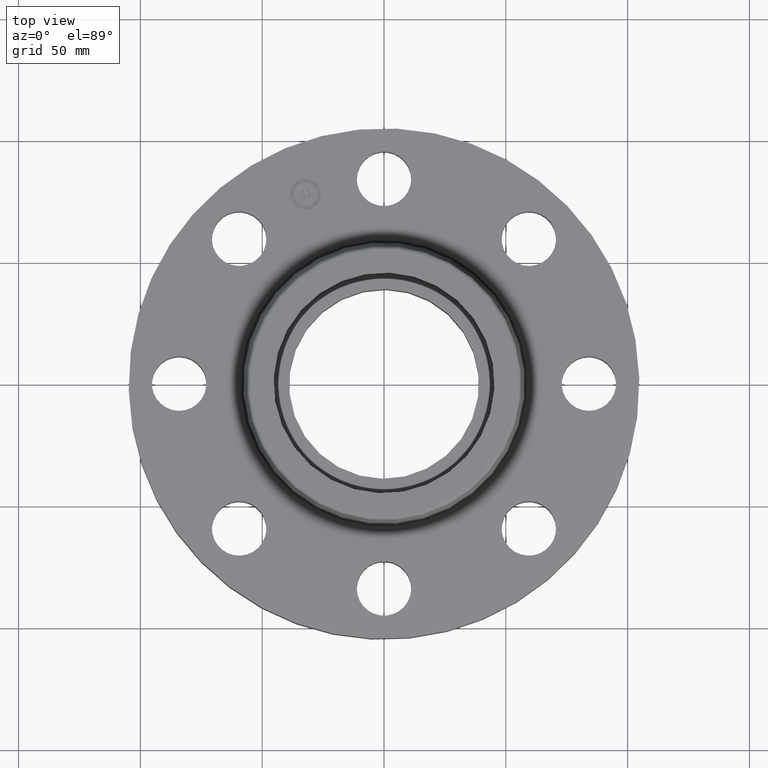
[diagram: clean part render]
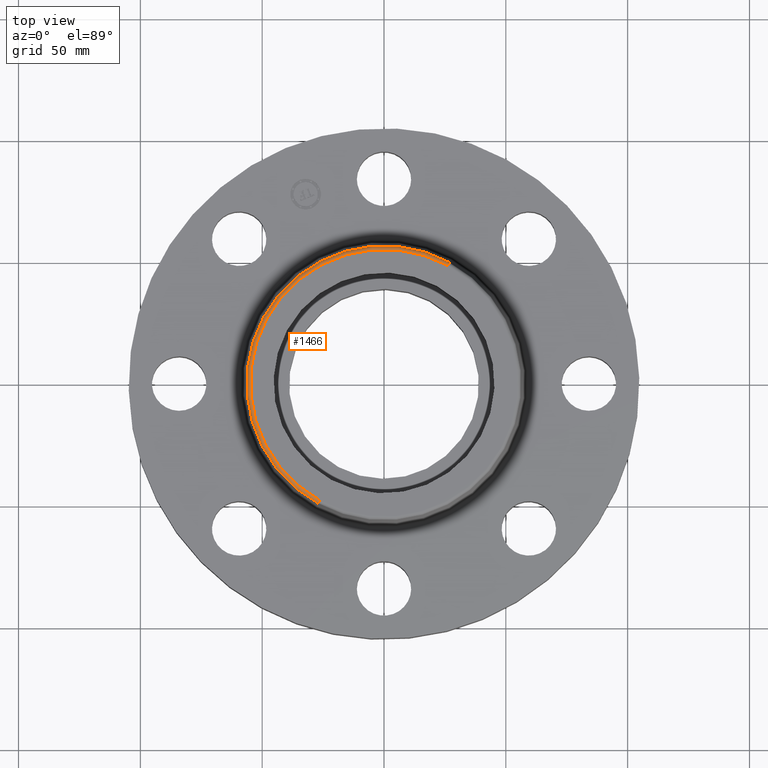
[diagram: same view with one face highlighted and labeled with its STEP entity id]
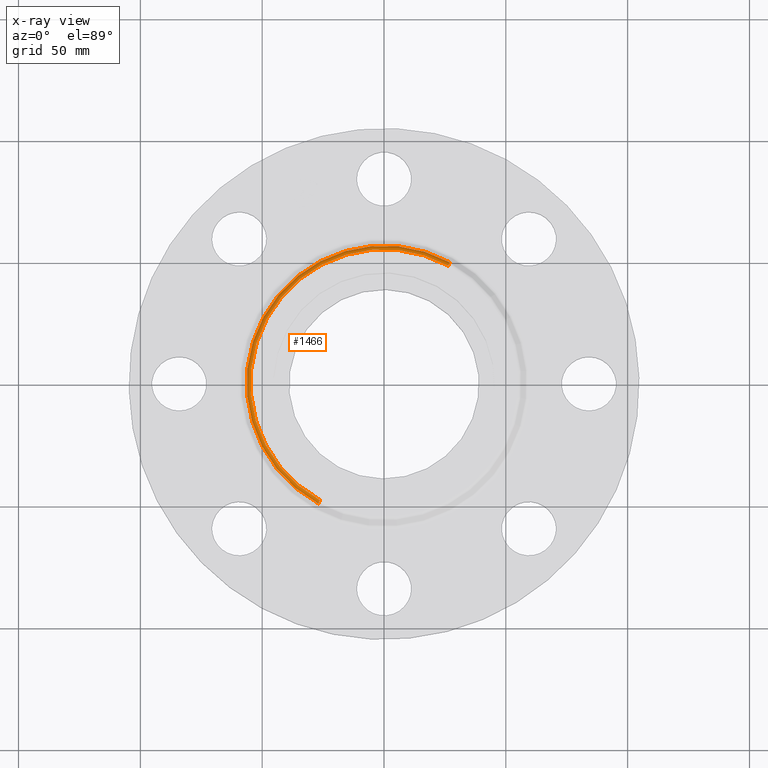
[diagram: x-ray of the same camera — body ghosted, the highlighted face saturated]
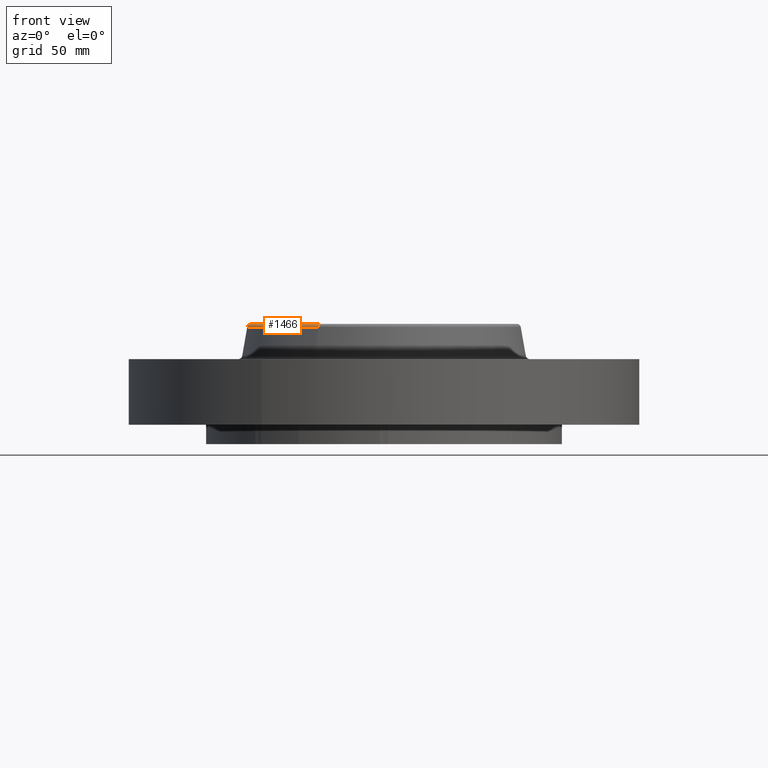
[diagram: same view with one face highlighted and labeled with its STEP entity id]
A machine part, top view. The second image highlights one B-rep face of the part: STEP entity #1466.
The next image is the same camera in x-ray: the body ghosted, the highlighted face saturated — about 0% of this face is hidden behind the body in this view.
A second angle (front view) of the same face is appended — the face is thin or edge-on in the first view.
In plain terms, the highlighted toroidal blend (fillet) surface has major radius 54.8424 mm and minor (blend) radius 1.524 mm.
Its self-contained STEP definition (entity closure, byte-faithful):
#1371=AXIS2_PLACEMENT_3D('Circle Axis2P3D',#1369,#1370,$) ;
#1427=AXIS2_PLACEMENT_3D('Torus Axis2P3D',#1424,#1425,#1426) ;
#1431=AXIS2_PLACEMENT_3D('Circle Axis2P3D',#1429,#1430,$) ;
#1445=AXIS2_PLACEMENT_3D('Circle Axis2P3D',#1443,#1444,$) ;
#1457=AXIS2_PLACEMENT_3D('Circle Axis2P3D',#1455,#1456,$) ;
#1347=CARTESIAN_POINT('Vertex',(1.06347904098,1.94668532681,1.58041889067)) ;
#1354=CARTESIAN_POINT('Vertex',(-1.06347904098,-1.94668532681,1.58041889067)) ;
#1369=CARTESIAN_POINT('Axis2P3D Location',(0.,0.,1.58041889067)) ;
#1424=CARTESIAN_POINT('Axis2P3D Location',(0.,0.,1.57000000001)) ;
#1429=CARTESIAN_POINT('Axis2P3D Location',(1.03515052174,1.89483032016,1.57000000001)) ;
#1433=CARTESIAN_POINT('Vertex',(1.03515052174,1.89483032016,1.63000000001)) ;
#1440=CARTESIAN_POINT('Vertex',(-1.03515052174,-1.89483032016,1.63000000001)) ;
#1443=CARTESIAN_POINT('Axis2P3D Location',(-1.03515052174,-1.89483032016,1.57000000001)) ;
#1455=CARTESIAN_POINT('Axis2P3D Location',(0.,0.,1.63000000001)) ;
#1370=DIRECTION('Axis2P3D Direction',(0.,0.,-0.0393700787402)) ;
#1425=DIRECTION('Axis2P3D Direction',(0.,0.,-0.0393700787402)) ;
#1426=DIRECTION('Axis2P3D XDirection',(-0.0188750212049,-0.0345504945626,0.)) ;
#1430=DIRECTION('Axis2P3D Direction',(-0.0345504945626,0.0188750212049,0.)) ;
#1444=DIRECTION('Axis2P3D Direction',(0.0345504945626,-0.0188750212049,0.)) ;
#1456=DIRECTION('Axis2P3D Direction',(0.,0.,-0.0393700787402)) ;
#1461=ORIENTED_EDGE('',*,*,#1373,.F.) ;
#1462=ORIENTED_EDGE('',*,*,#1447,.T.) ;
#1463=ORIENTED_EDGE('',*,*,#1459,.T.) ;
#1464=ORIENTED_EDGE('',*,*,#1435,.F.) ;
#1466=ADVANCED_FACE('PartBody',(#1465),#1428,.T.) ;
#1372=CIRCLE('generated circle',#1371,2.21823610832) ;
#1432=CIRCLE('generated circle',#1431,0.0600000000002) ;
#1446=CIRCLE('generated circle',#1445,0.0600000000002) ;
#1458=CIRCLE('generated circle',#1457,2.15914764313) ;
#1428=TOROIDAL_SURFACE('homeo Torus',#1427,2.15914764313,0.0600000000002) ;
#1373=EDGE_CURVE('',#1355,#1348,#1372,.T.) ;
#1435=EDGE_CURVE('',#1348,#1434,#1432,.F.) ;
#1447=EDGE_CURVE('',#1355,#1441,#1446,.F.) ;
#1459=EDGE_CURVE('',#1441,#1434,#1458,.T.) ;
#1460=EDGE_LOOP('',(#1461,#1462,#1463,#1464)) ;
#1465=FACE_OUTER_BOUND('',#1460,.T.) ;
#1348=VERTEX_POINT('',#1347) ;
#1355=VERTEX_POINT('',#1354) ;
#1434=VERTEX_POINT('',#1433) ;
#1441=VERTEX_POINT('',#1440) ;